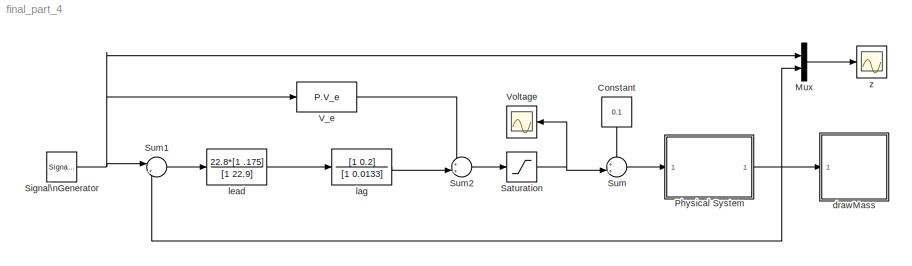
MODEL final_part_4
KIND model
BLOCK [Constant] Constant
  SID = 65
  Value = 0.1
BLOCK [Mux] Mux
  DisplayOption = bar
  Inputs = 2
  Ports = [2, 1]
  SID = 43
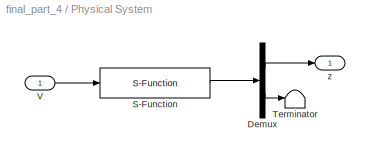
BLOCK [SubSystem] Physical System
  Ports = [1, 1]
  RequestExecContextInheritance = off
  SID = 73
BLOCK [Demux] Physical System/Demux
  DisplayOption = bar
  Outputs = [1;3]
  Ports = [1, 2]
  SID = 75
BLOCK [S-Function] Physical System/S-Function
  EnableBusSupport = off
  FunctionName = mass_dynamics
  Parameters = P
  Ports = [1, 1]
  SID = 76
BLOCK [Terminator] Physical System/Terminator
  SID = 77
BLOCK [Inport] Physical System/V
  IconDisplay = Port number
  SID = 74
BLOCK [Outport] Physical System/z
  IconDisplay = Port number
  SID = 78
BLOCK [Saturate] Saturation
  InputPortMap = u0
  LowerLimit = -P.V_max
  Ports = [1, 1]
  SID = 44
  UpperLimit = P.V_max
BLOCK [SignalGenerator] Signal\nGenerator
  Amplitude = 0.5
  Frequency = .025
  Ports = [0, 1]
  SID = 45
  WaveForm = square
BLOCK [Sum] Sum
  IconShape = round
  InputSameDT = off
  Inputs = ++|
  OutDataTypeStr = Inherit: Inherit via internal rule
  Ports = [2, 1]
  SID = 66
  SaturateOnIntegerOverflow = off
BLOCK [Sum] Sum1
  IconShape = round
  InputSameDT = off
  Inputs = |+-
  OutDataTypeStr = Inherit: Inherit via internal rule
  Ports = [2, 1]
  SID = 87
  SaturateOnIntegerOverflow = off
BLOCK [Sum] Sum2
  IconShape = round
  InputSameDT = off
  Inputs = ++|
  OutDataTypeStr = Inherit: Inherit via internal rule
  Ports = [2, 1]
  SID = 88
  SaturateOnIntegerOverflow = off
BLOCK [Fcn] V_e
  Expr = P.V_e
  SID = 93
BLOCK [Scope] Voltage
  DataFormat = StructureWithTime
  Floating = off
  LimitDataPoints = off
  NumInputPorts = 1
  Ports = [1]
  SID = 60
  SampleTime = 0
  SaveName = ScopeData2
  ShowLegends = off
  TimeRange = 60
  YMax = 25
  YMin = -25
  ZoomMode = xonly
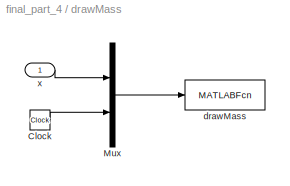
BLOCK [SubSystem] drawMass
  Ports = [1]
  RequestExecContextInheritance = off
  SID = 67
BLOCK [Clock] drawMass/Clock
  SID = 69
BLOCK [Mux] drawMass/Mux
  DisplayOption = bar
  Inputs = 2
  Ports = [2, 1]
  SID = 70
BLOCK [MATLABFcn] drawMass/drawMass
  MATLABFcn = drawMass(u,w,L,theta)
  OutputDimensions = 0
  Ports = [1]
  SID = 71
  SampleTime = 0.1
BLOCK [Inport] drawMass/x
  IconDisplay = Port number
  SID = 68
BLOCK [TransferFcn] lag
  Denominator = [1 0.0133]
  Numerator = [1 0.2]
  SID = 90
BLOCK [TransferFcn] lead
  Denominator = [1 22.9]
  Numerator = 22.8*[1 .175]
  SID = 91
BLOCK [Scope] z
  DataFormat = StructureWithTime
  Floating = off
  LimitDataPoints = off
  NumInputPorts = 1
  Ports = [1]
  SID = 72
  SampleTime = 0
  ShowLegends = off
  TimeRange = 60
  YMax = 0.9
  YMin = -0.9
LINE Constant:1 -> Sum:1
LINE Mux:1 -> z:1
LINE Physical System/Demux:1 -> Physical System/z:1
LINE Physical System/Demux:2 -> Physical System/Terminator:1
LINE Physical System/S-Function:1 -> Physical System/Demux:1
LINE Physical System/V:1 -> Physical System/S-Function:1
NET Physical System:1 -> Mux:2, Sum1:2, drawMass:1
NET Saturation:1 -> Sum:2, Voltage:1
NET Signal\nGenerator:1 -> Mux:1, Sum1:1, V_e:1
LINE Sum1:1 -> lead:1
LINE Sum2:1 -> Saturation:1
LINE Sum:1 -> Physical System:1
LINE V_e:1 -> Sum2:1
LINE drawMass/Clock:1 -> drawMass/Mux:2
LINE drawMass/Mux:1 -> drawMass/drawMass:1
LINE drawMass/x:1 -> drawMass/Mux:1
LINE lag:1 -> Sum2:2
LINE lead:1 -> lag:1
note: NET lines group one-source signal fan-out (src -> all destinations, sorted); 1:1 wires keep LINE
